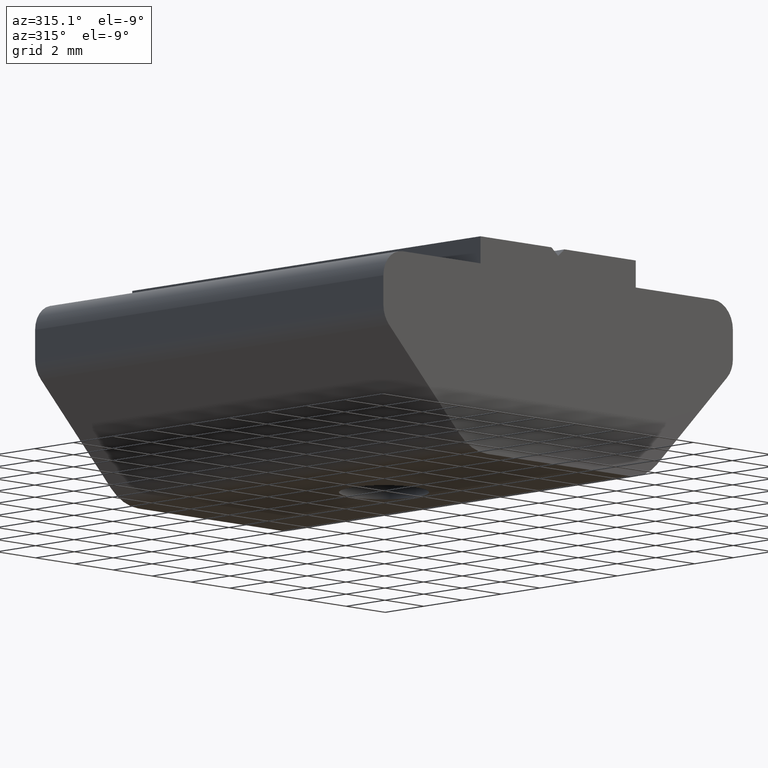
[diagram: clean part render]
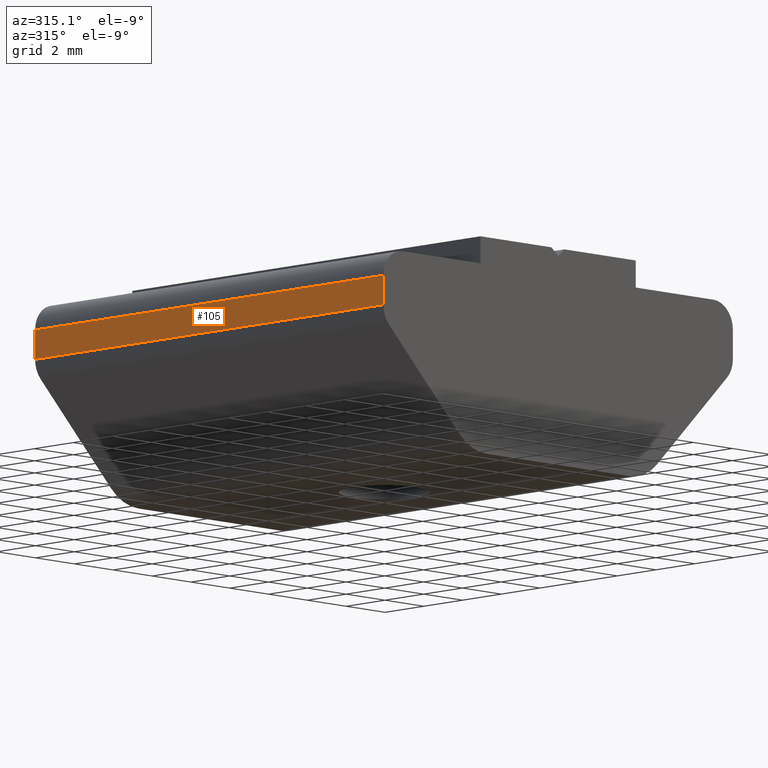
[diagram: same view with one face highlighted and labeled with its STEP entity id]
A machine part, auxiliary view. The second image highlights one B-rep face of the part: STEP entity #105.
In plain terms, the highlighted planar face has unit normal (-1, 0, 0).
Its self-contained STEP definition (entity closure, byte-faithful):
#47=CARTESIAN_POINT('',(-8.999997993984323,9.0,5.999998677999996));
#48=VERTEX_POINT('',#47);
#56=CARTESIAN_POINT('',(-8.999997993984323,-9.0,5.999998677999998));
#57=VERTEX_POINT('',#56);
#58=CARTESIAN_POINT('',(-8.999997993984323,9.0,5.999998677999996));
#59=DIRECTION('',(0.0,-1.0,0.0));
#60=VECTOR('',#59,18.0);
#61=LINE('',#58,#60);
#62=EDGE_CURVE('',#48,#57,#61,.T.);
#75=CARTESIAN_POINT('',(-8.999997993984323,9.0,5.999998677999996));
#76=DIRECTION('',(-1.0,0.0,0.0));
#77=DIRECTION('',(0.0,0.0,-1.0));
#78=AXIS2_PLACEMENT_3D('',#75,#76,#77);
#79=PLANE('',#78);
#80=CARTESIAN_POINT('',(-8.999997993984351,9.0,4.914212479044635));
#81=VERTEX_POINT('',#80);
#82=CARTESIAN_POINT('',(-8.999997993984337,9.0,5.999998677999996));
#83=DIRECTION('',(0.0,0.0,-1.0));
#84=VECTOR('',#83,1.085786198955361);
#85=LINE('',#82,#84);
#86=EDGE_CURVE('',#48,#81,#85,.T.);
#87=ORIENTED_EDGE('',*,*,#86,.T.);
#88=CARTESIAN_POINT('',(-8.999997993984351,-9.0,4.914212479044637));
#89=VERTEX_POINT('',#88);
#90=CARTESIAN_POINT('',(-8.999997993984351,9.0,4.914212479044635));
#91=DIRECTION('',(0.0,-1.0,0.0));
#92=VECTOR('',#91,18.0);
#93=LINE('',#90,#92);
#94=EDGE_CURVE('',#81,#89,#93,.T.);
#95=ORIENTED_EDGE('',*,*,#94,.T.);
#96=CARTESIAN_POINT('',(-8.999997993984337,-9.0,5.999998677999998));
#97=DIRECTION('',(0.0,0.0,-1.0));
#98=VECTOR('',#97,1.085786198955361);
#99=LINE('',#96,#98);
#100=EDGE_CURVE('',#57,#89,#99,.T.);
#101=ORIENTED_EDGE('',*,*,#100,.F.);
#102=ORIENTED_EDGE('',*,*,#62,.F.);
#103=EDGE_LOOP('',(#87,#95,#101,#102));
#104=FACE_OUTER_BOUND('',#103,.T.);
#105=ADVANCED_FACE('',(#104),#79,.T.);